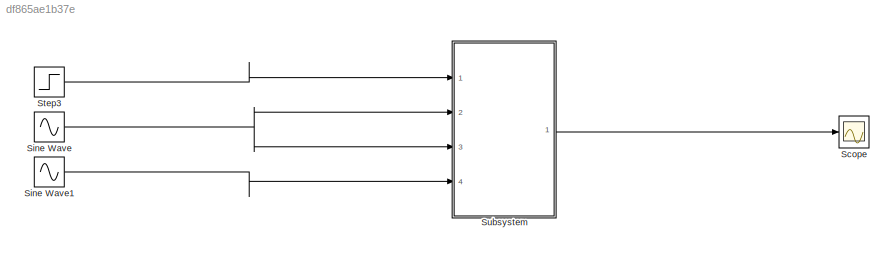
MODEL slx_df865ae1b37e
KIND model
CONFIG AbsTol = auto
CONFIG EnableMultiTasking = off
CONFIG FixedStep = auto
CONFIG MaxStep = auto
CONFIG MinStep = auto
CONFIG RelTol = 1e-3
CONFIG SampleTimeConstraint = Unconstrained
CONFIG SolverName = VariableStepAuto
CONFIG StartTime = 0.0
CONFIG StopTime = 20
BLOCK [Scope] Scope
  Floating = off
  NumInputPorts = 1
  Ports = [1]
  ScopeSpecificationString = Simulink.scopes.TimeScopeBlockCfg('CurrentConfiguration', extmgr.ConfigurationSet(extmgr.Configuration('Core','General UI',true),extmgr.Configuration('Core','Source UI',true),extmgr.Configuration('Sources','WiredSimulink',true),extmgr.Configuration('Visuals','Time Domain',true,'SerializedDisplays',{struct('MinYLimReal','-21.98557','MaxYLimReal','11.00896','YLabelReal','','MinYLimMag','0.00000','Ma...<+1467ch>
BLOCK [Sin] Sine Wave
  Frequency = 5
  Ports = [0, 1]
  SampleTime = 0
BLOCK [Sin] Sine Wave1
  Frequency = 500
  Ports = [0, 1]
  SampleTime = 0
BLOCK [Step] Step3
  After = 10
  SampleTime = 0
  Time = 0
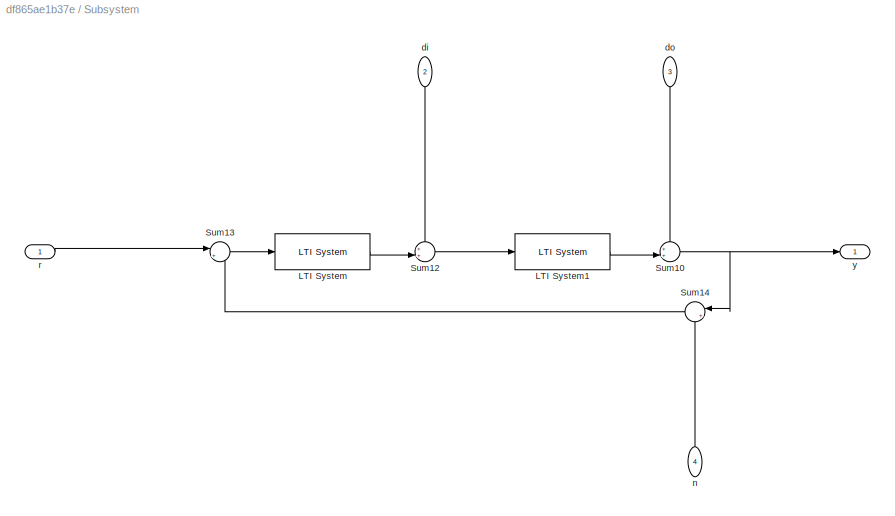
BLOCK [SubSystem] Subsystem
  Ports = [4, 1]
  RequestExecContextInheritance = off
BLOCK [Reference] Subsystem/LTI System  REF=cstblocks/LTI System
  Ports = [1, 1]
  SourceBlock = cstblocks/LTI System
  SourceProductBaseCode = CT
  SourceType = LTI Block
BLOCK [Reference] Subsystem/LTI System1  REF=cstblocks/LTI System
  Ports = [1, 1]
  SourceBlock = cstblocks/LTI System
  SourceProductBaseCode = CT
  SourceType = LTI Block
BLOCK [Sum] Subsystem/Sum10
  Inputs = ++|
  Ports = [2, 1]
BLOCK [Sum] Subsystem/Sum12
  Inputs = ++|
  Ports = [2, 1]
BLOCK [Sum] Subsystem/Sum13
  Inputs = |+-
  Ports = [2, 1]
BLOCK [Sum] Subsystem/Sum14
  Inputs = |++
  NameLocation = top
  Ports = [2, 1]
BLOCK [Inport] Subsystem/di
  NameLocation = left
  Port = 2
BLOCK [Inport] Subsystem/do
  NameLocation = left
  Port = 3
BLOCK [Inport] Subsystem/n
  NameLocation = right
  Port = 4
BLOCK [Inport] Subsystem/r
BLOCK [Outport] Subsystem/y
LINE Sine Wave1:1 -> Subsystem:4
NET Sine Wave:1 -> Subsystem:2, Subsystem:3
LINE Step3:1 -> Subsystem:1
LINE Subsystem/LTI System1:1 -> Subsystem/Sum10:2
LINE Subsystem/LTI System:1 -> Subsystem/Sum12:2
NET Subsystem/Sum10:1 -> Subsystem/Sum14:1, Subsystem/y:1
LINE Subsystem/Sum12:1 -> Subsystem/LTI System1:1
LINE Subsystem/Sum13:1 -> Subsystem/LTI System:1
LINE Subsystem/Sum14:1 -> Subsystem/Sum13:2
LINE Subsystem/di:1 -> Subsystem/Sum12:1
LINE Subsystem/do:1 -> Subsystem/Sum10:1
LINE Subsystem/n:1 -> Subsystem/Sum14:2
LINE Subsystem/r:1 -> Subsystem/Sum13:1
LINE Subsystem:1 -> Scope:1
note: NET lines group one-source signal fan-out (src -> all destinations, sorted); 1:1 wires keep LINE
